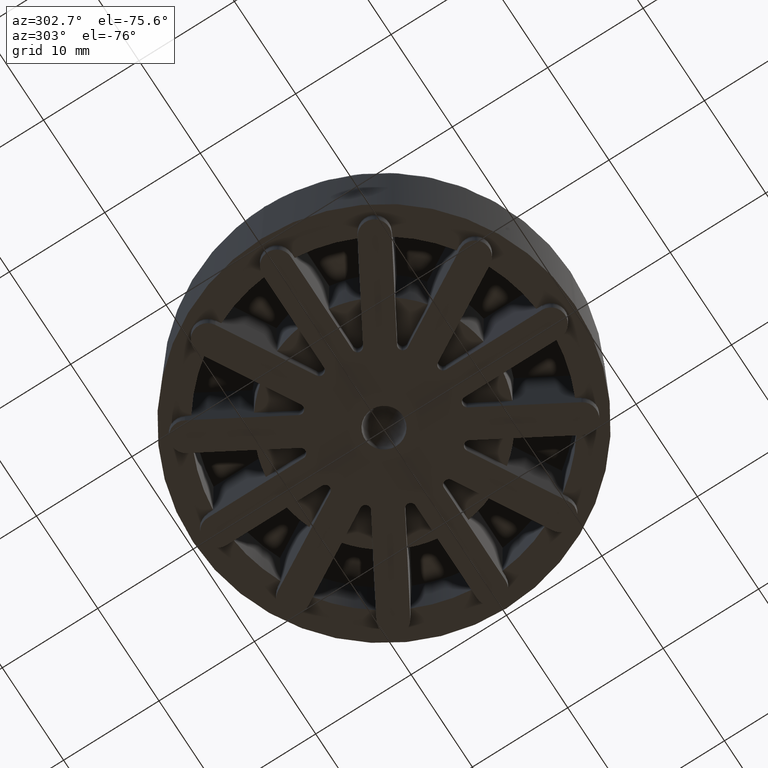
[diagram: clean part render]
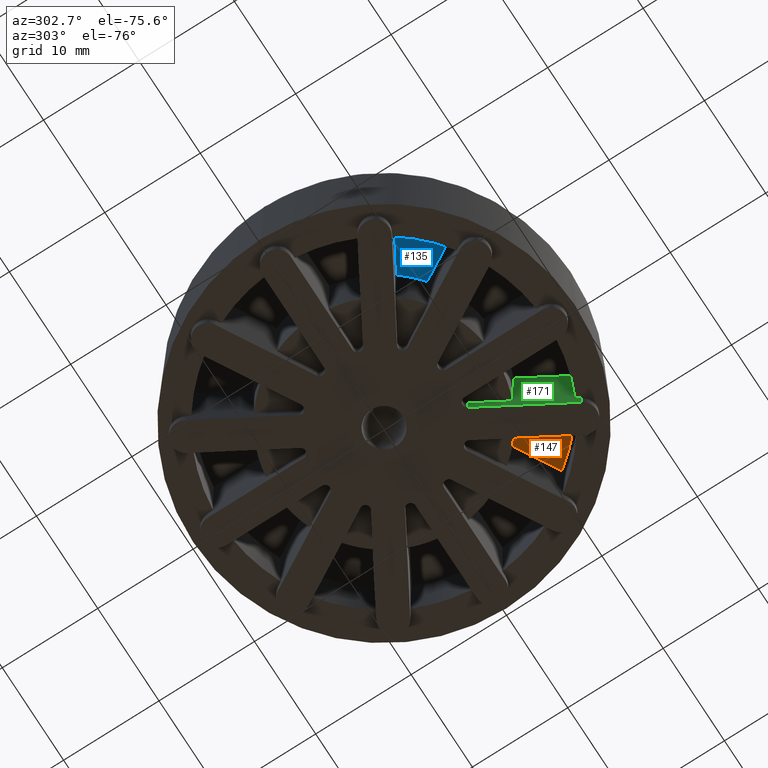
[diagram: same view with three faces highlighted in distinct colors, each labeled with its STEP entity id]
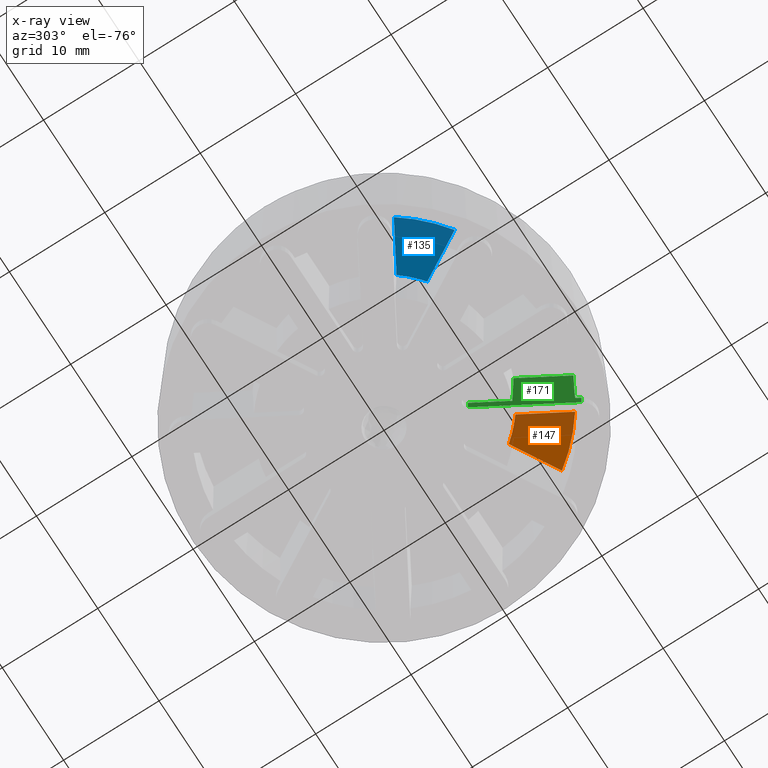
[diagram: x-ray of the same camera — body ghosted, the three highlighted faces saturated]
A machine part, auxiliary view with three faces highlighted in distinct colors.
The next image is the same camera in x-ray (body ghosted, the three faces saturated) — at least one of them is partly hidden behind the body in this view.
Their STEP definitions:

[orange] entity #147 — the highlighted planar face has unit normal (0, 0, 1).
#147=ADVANCED_FACE('',(#1276),#1275,.F.);
#1275=PLANE('',#2373);
#1276=FACE_OUTER_BOUND('',#2374,.T.);
#2370=CARTESIAN_POINT('',(6.54334637310E+00,-1.43694406533E+01,9.00000000000E+00));
#2371=DIRECTION('',(0.00000000000E+00,0.00000000000E+00,1.00000000000E+00));
#2372=DIRECTION('',(1.00000000000E+00,0.00000000000E+00,-0.00000000000E+00));
#2373=AXIS2_PLACEMENT_3D('',#2370,#2371,#2372);
#2374=EDGE_LOOP('',(#3324,#3325,#3326,#3327));
#3324=ORIENTED_EDGE('',*,*,#3941,.T.);
#3325=ORIENTED_EDGE('',*,*,#3937,.F.);
#3326=ORIENTED_EDGE('',*,*,#3878,.T.);
#3327=ORIENTED_EDGE('',*,*,#3942,.T.);
#3878=EDGE_CURVE('',#5949,#5942,#5950,.T.);
#3937=EDGE_CURVE('',#5949,#6320,#6333,.T.);
#3941=EDGE_CURVE('',#6359,#6320,#6360,.T.);
#3942=EDGE_CURVE('',#5942,#6359,#6366,.T.);
#5942=VERTEX_POINT('',#7929);
#5949=VERTEX_POINT('',#7934);
#5950=LINE('',#7935,#7936);
#6320=VERTEX_POINT('',#8167);
#6333=CIRCLE('',#8179,1.16394315304E+01);
#6359=VERTEX_POINT('',#8194);
#6360=LINE('',#8195,#8196);
#6366=CIRCLE('',#8201,1.68776055565E+01);
#7929=CARTESIAN_POINT('',(1.37172661300E+01,-9.83311645609E+00,9.00000000000E+00));
#7934=CARTESIAN_POINT('',(9.14881661087E+00,-7.19552089645E+00,9.00000000000E+00));
#7935=CARTESIAN_POINT('',(9.14881661087E+00,-7.19552089645E+00,9.00000000000E+00));
#7936=VECTOR('',#7937,5.27519111927E+00);
#7937=DIRECTION('',(8.66025403784E-01,-5.00000000000E-01,0.00000000000E+00));
#8167=CARTESIAN_POINT('',(7.19552089645E+00,-9.14881661087E+00,9.00000000000E+00));
#8176=CARTESIAN_POINT('',(0.00000000000E+00,0.00000000000E+00,9.00000000000E+00));
#8177=DIRECTION('',(-0.00000000000E+00,0.00000000000E+00,-1.00000000000E+00));
#8178=DIRECTION('',(1.00000000000E+00,-0.00000000000E+00,-0.00000000000E+00));
#8179=AXIS2_PLACEMENT_3D('',#8176,#8177,#8178);
#8194=CARTESIAN_POINT('',(9.83311645609E+00,-1.37172661300E+01,9.00000000000E+00));
#8195=CARTESIAN_POINT('',(9.83311645609E+00,-1.37172661300E+01,9.00000000000E+00));
#8196=VECTOR('',#8197,5.27519111927E+00);
#8197=DIRECTION('',(-5.00000000000E-01,8.66025403784E-01,0.00000000000E+00));
#8198=CARTESIAN_POINT('',(0.00000000000E+00,0.00000000000E+00,9.00000000000E+00));
#8199=DIRECTION('',(-0.00000000000E+00,0.00000000000E+00,-1.00000000000E+00));
#8200=DIRECTION('',(1.00000000000E+00,-0.00000000000E+00,-0.00000000000E+00));
#8201=AXIS2_PLACEMENT_3D('',#8198,#8199,#8200);

[blue] entity #135 — the highlighted planar face has unit normal (0, 0, 1).
#135=ADVANCED_FACE('',(#1155),#1154,.F.);
#1154=PLANE('',#2298);
#1155=FACE_OUTER_BOUND('',#2299,.T.);
#2295=CARTESIAN_POINT('',(-1.43694406533E+01,-1.43694406533E+01,9.00000000000E+00));
#2296=DIRECTION('',(0.00000000000E+00,0.00000000000E+00,1.00000000000E+00));
#2297=DIRECTION('',(1.00000000000E+00,0.00000000000E+00,-0.00000000000E+00));
#2298=AXIS2_PLACEMENT_3D('',#2295,#2296,#2297);
#2299=EDGE_LOOP('',(#3206,#3207,#3208,#3209));
#3206=ORIENTED_EDGE('',*,*,#3607,.T.);
#3207=ORIENTED_EDGE('',*,*,#3895,.F.);
#3208=ORIENTED_EDGE('',*,*,#3896,.T.);
#3209=ORIENTED_EDGE('',*,*,#3897,.T.);
#3607=EDGE_CURVE('',#4086,#4129,#4136,.T.);
#3895=EDGE_CURVE('',#6060,#4129,#6061,.T.);
#3896=EDGE_CURVE('',#6060,#6067,#6068,.T.);
#3897=EDGE_CURVE('',#6067,#4086,#6074,.T.);
#4086=VERTEX_POINT('',#6802);
#4129=VERTEX_POINT('',#6831);
#4136=LINE('',#6836,#6837);
#6060=VERTEX_POINT('',#8001);
#6061=CIRCLE('',#8005,1.16394315304E+01);
#6067=VERTEX_POINT('',#8006);
#6068=LINE('',#8007,#8008);
#6074=CIRCLE('',#8013,1.68776055565E+01);
#6802=CARTESIAN_POINT('',(-1.37172661300E+01,-9.83311645609E+00,9.00000000000E+00));
#6831=CARTESIAN_POINT('',(-9.14881661087E+00,-7.19552089645E+00,9.00000000000E+00));
#6836=CARTESIAN_POINT('',(-1.37172661300E+01,-9.83311645609E+00,9.00000000000E+00));
#6837=VECTOR('',#6838,5.27519111927E+00);
#6838=DIRECTION('',(8.66025403784E-01,5.00000000000E-01,0.00000000000E+00));
#8001=CARTESIAN_POINT('',(-7.19552089645E+00,-9.14881661087E+00,9.00000000000E+00));
#8002=CARTESIAN_POINT('',(0.00000000000E+00,0.00000000000E+00,9.00000000000E+00));
#8003=DIRECTION('',(-0.00000000000E+00,0.00000000000E+00,-1.00000000000E+00));
#8004=DIRECTION('',(1.00000000000E+00,-0.00000000000E+00,-0.00000000000E+00));
#8005=AXIS2_PLACEMENT_3D('',#8002,#8003,#8004);
#8006=CARTESIAN_POINT('',(-9.83311645609E+00,-1.37172661300E+01,9.00000000000E+00));
#8007=CARTESIAN_POINT('',(-7.19552089645E+00,-9.14881661087E+00,9.00000000000E+00));
#8008=VECTOR('',#8009,5.27519111927E+00);
#8009=DIRECTION('',(-5.00000000000E-01,-8.66025403784E-01,0.00000000000E+00));
#8010=CARTESIAN_POINT('',(0.00000000000E+00,0.00000000000E+00,9.00000000000E+00));
#8011=DIRECTION('',(-0.00000000000E+00,0.00000000000E+00,-1.00000000000E+00));
#8012=DIRECTION('',(1.00000000000E+00,-0.00000000000E+00,-0.00000000000E+00));
#8013=AXIS2_PLACEMENT_3D('',#8010,#8011,#8012);

[green] entity #171 — the highlighted planar face has unit normal (-0.8659, -0.4999, -0.0175).
#171=ADVANCED_FACE('',(#1516),#1515,.T.);
#1515=PLANE('',#2515);
#1516=FACE_OUTER_BOUND('',#2516,.T.);
#2512=CARTESIAN_POINT('',(1.94482265934E+00,-6.33711254081E+00,-9.00000000000E-01));
#2513=DIRECTION('',(-8.65893503921E-01,-4.99923847578E-01,-1.74524064373E-02));
#2514=DIRECTION('',(5.00000000000E-01,-8.66025403784E-01,-9.68803173089E-19));
#2515=AXIS2_PLACEMENT_3D('',#2512,#2513,#2514);
#2516=EDGE_LOOP('',(#3440,#3441,#3442,#3443,#3444,#3445,#3446,#3447));
#3440=ORIENTED_EDGE('',*,*,#3634,.F.);
#3441=ORIENTED_EDGE('',*,*,#3915,.T.);
#3442=ORIENTED_EDGE('',*,*,#3910,.T.);
#3443=ORIENTED_EDGE('',*,*,#3903,.F.);
#3444=ORIENTED_EDGE('',*,*,#3934,.T.);
#3445=ORIENTED_EDGE('',*,*,#3978,.T.);
#3446=ORIENTED_EDGE('',*,*,#3627,.T.);
#3447=ORIENTED_EDGE('',*,*,#3854,.T.);
#3627=EDGE_CURVE('',#4276,#4269,#4277,.T.);
#3634=EDGE_CURVE('',#4318,#4311,#4325,.T.);
#3854=EDGE_CURVE('',#4269,#4311,#5787,.T.);
#3903=EDGE_CURVE('',#6106,#6113,#6114,.T.);
#3910=EDGE_CURVE('',#6158,#6113,#6159,.T.);
#3915=EDGE_CURVE('',#4318,#6158,#6191,.T.);
#3934=EDGE_CURVE('',#6106,#6306,#6313,.T.);
#3978=EDGE_CURVE('',#6306,#4276,#6595,.T.);
#4269=VERTEX_POINT('',#6921);
#4276=VERTEX_POINT('',#6925);
#4277=LINE('',#6926,#6927);
#4311=VERTEX_POINT('',#6945);
#4318=VERTEX_POINT('',#6949);
#4325=LINE('',#6953,#6954);
#5787=LINE('',#7825,#7826);
#6106=VERTEX_POINT('',#8031);
#6113=VERTEX_POINT('',#8036);
#6114=LINE('',#8037,#8038);
#6158=VERTEX_POINT('',#8066);
#6159=(BOUNDED_CURVE() B_SPLINE_CURVE(3,(#8067,#8068,#8069,#8070),.UNSPECIFIED.,.F.,.F.) B_SPLINE_CURVE_WITH_KNOTS((4,4),(0.00000000000E+00,7.50252161501E-03),.UNSPECIFIED.) CURVE() GEOMETRIC_REPRESENTATION_ITEM() RATIONAL_B_SPLINE_CURVE((1.00000000000E+00,1.00000000000E+00,1.00000000000E+00,1.00000000000E+00)) REPRESENTATION_ITEM('') );
#6191=LINE('',#8088,#8089);
#6306=VERTEX_POINT('',#8157);
#6313=(BOUNDED_CURVE() B_SPLINE_CURVE(3,(#8162,#8163,#8164,#8165),.UNSPECIFIED.,.F.,.F.) B_SPLINE_CURVE_WITH_KNOTS((4,4),(-3.01242339547E-02,-2.26222254681E-02),.UNSPECIFIED.) CURVE() GEOMETRIC_REPRESENTATION_ITEM() RATIONAL_B_SPLINE_CURVE((1.00000000000E+00,1.00000000000E+00,1.00000000000E+00,1.00000000000E+00)) REPRESENTATION_ITEM('') );
#6595=LINE('',#8357,#8358);
#6921=CARTESIAN_POINT('',(2.43301270189E+00,-7.21410161514E+00,0.00000000000E+00));
#6925=CARTESIAN_POINT('',(2.41033790741E+00,-7.22719291383E+00,1.50000000000E+00));
#6926=CARTESIAN_POINT('',(2.41033790741E+00,-7.22719291383E+00,1.50000000000E+00));
#6927=VECTOR('',#6928,1.50022849207E+00);
#6928=DIRECTION('',(1.51142273319E-02,8.72620321864E-03,-9.99847695156E-01));
#6945=CARTESIAN_POINT('',(7.45096189432E+00,-1.59054445662E+01,0.00000000000E+00));
#6949=CARTESIAN_POINT('',(7.42828709984E+00,-1.59185358649E+01,1.50000000000E+00));
#6953=CARTESIAN_POINT('',(7.42828709984E+00,-1.59185358649E+01,1.50000000000E+00));
#6954=VECTOR('',#6955,1.50022849207E+00);
#6955=DIRECTION('',(1.51142273319E-02,8.72620321864E-03,-9.99847695156E-01));
#7825=CARTESIAN_POINT('',(2.43301270189E+00,-7.21410161514E+00,0.00000000000E+00));
#7826=VECTOR('',#7827,1.00358983849E+01);
#7827=DIRECTION('',(5.00000000000E-01,-8.66025403784E-01,0.00000000000E+00));
#8031=CARTESIAN_POINT('',(4.32534715135E+00,-1.08059121952E+01,9.00000000000E+00));
#8036=CARTESIAN_POINT('',(6.96294271099E+00,-1.53743617143E+01,9.00000000000E+00));
#8037=CARTESIAN_POINT('',(4.32534715135E+00,-1.08059121952E+01,9.00000000000E+00));
#8038=VECTOR('',#8039,5.27519111927E+00);
#8039=DIRECTION('',(5.00000000000E-01,-8.66025403784E-01,0.00000000000E+00));
#8066=CARTESIAN_POINT('',(7.14824090317E+00,-1.54334816238E+01,1.50000000000E+00));
#8067=CARTESIAN_POINT('',(7.14824090317E+00,-1.54334816238E+01,1.50000000000E+00));
#8068=CARTESIAN_POINT('',(7.08657653609E+00,-1.54139512676E+01,4.00000389384E+00));
#8069=CARTESIAN_POINT('',(7.02481134227E+00,-1.53942461401E+01,6.50000394395E+00));
#8070=CARTESIAN_POINT('',(6.96294271099E+00,-1.53743617143E+01,9.00000000000E+00));
#8088=CARTESIAN_POINT('',(7.42828709984E+00,-1.59185358649E+01,1.50000000000E+00));
#8089=VECTOR('',#8090,5.60092393359E-01);
#8090=DIRECTION('',(-5.00000000000E-01,8.66025403784E-01,0.00000000000E+00));
#8157=CARTESIAN_POINT('',(4.38172390899E+00,-1.06417336299E+01,1.50000000000E+00));
#8162=CARTESIAN_POINT('',(4.32534715135E+00,-1.08059121952E+01,9.00000000000E+00));
#8163=CARTESIAN_POINT('',(4.34423341941E+00,-1.07513487477E+01,6.49999717216E+00));
#8164=CARTESIAN_POINT('',(4.36302661128E+00,-1.06966241852E+01,3.99999714391E+00));
#8165=CARTESIAN_POINT('',(4.38172390899E+00,-1.06417336299E+01,1.50000000000E+00));
#8357=CARTESIAN_POINT('',(4.38172390899E+00,-1.06417336299E+01,1.50000000000E+00));
#8358=VECTOR('',#8359,3.94277200316E+00);
#8359=DIRECTION('',(-5.00000000000E-01,8.66025403784E-01,0.00000000000E+00));